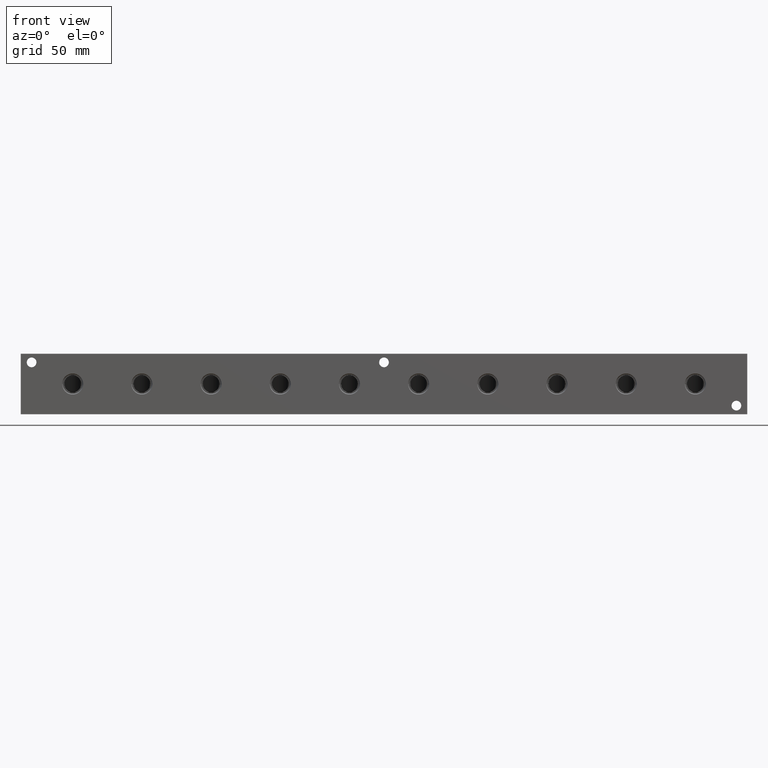
[diagram: clean part render]
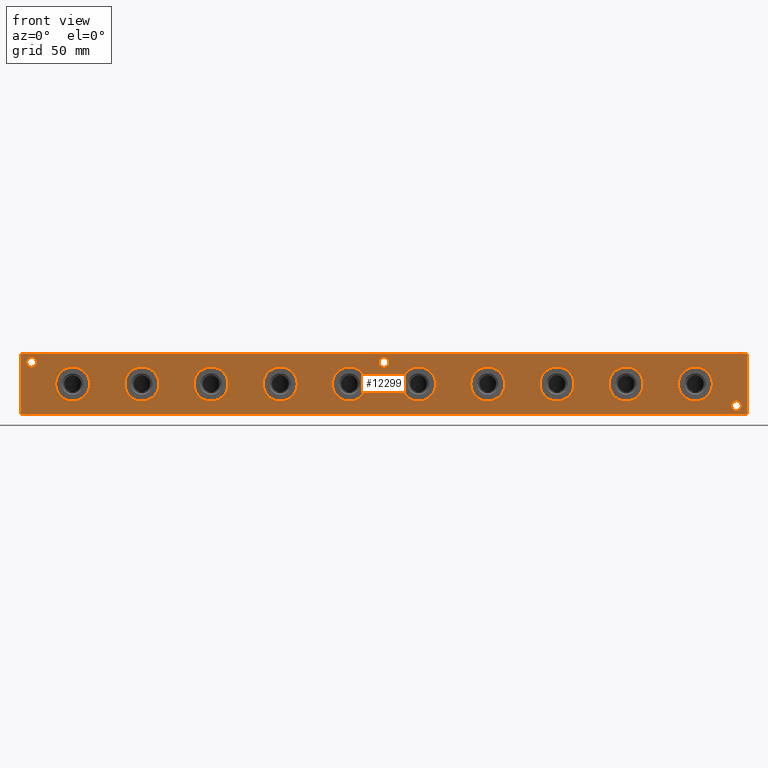
[diagram: same view with one face highlighted and labeled with its STEP entity id]
A machine part, front view. The second image highlights one B-rep face of the part: STEP entity #12299.
In plain terms, the highlighted planar face has unit normal (0, -1, 0).
Its self-contained STEP definition (entity closure, byte-faithful):
#453=CIRCLE('',#12546,12.5095);
#454=CIRCLE('',#12547,12.5095);
#464=CIRCLE('',#12562,12.5095);
#465=CIRCLE('',#12563,12.5095);
#475=CIRCLE('',#12578,12.5095);
#476=CIRCLE('',#12579,12.5095);
#486=CIRCLE('',#12594,12.5095);
#487=CIRCLE('',#12595,12.5095);
#497=CIRCLE('',#12610,12.5095);
#498=CIRCLE('',#12611,12.5095);
#508=CIRCLE('',#12626,12.5095);
#509=CIRCLE('',#12627,12.5095);
#519=CIRCLE('',#12642,12.5095);
#520=CIRCLE('',#12643,12.5095);
#530=CIRCLE('',#12658,12.5095);
#531=CIRCLE('',#12659,12.5095);
#541=CIRCLE('',#12674,12.5095);
#542=CIRCLE('',#12675,12.5095);
#723=CIRCLE('',#13110,12.5095);
#724=CIRCLE('',#13111,12.5095);
#971=CIRCLE('',#13505,3.5687);
#972=CIRCLE('',#13506,3.5687);
#974=CIRCLE('',#13514,3.5687);
#975=CIRCLE('',#13515,3.5687);
#977=CIRCLE('',#13523,3.5687);
#978=CIRCLE('',#13524,3.5687);
#1097=FACE_BOUND('',#2910,.T.);
#1098=FACE_BOUND('',#2911,.T.);
#1099=FACE_BOUND('',#2912,.T.);
#1100=FACE_BOUND('',#2913,.T.);
#1101=FACE_BOUND('',#2914,.T.);
#1102=FACE_BOUND('',#2915,.T.);
#1103=FACE_BOUND('',#2916,.T.);
#1104=FACE_BOUND('',#2917,.T.);
#1105=FACE_BOUND('',#2918,.T.);
#1106=FACE_BOUND('',#2919,.T.);
#1107=FACE_BOUND('',#2920,.T.);
#1108=FACE_BOUND('',#2921,.T.);
#1109=FACE_BOUND('',#2922,.T.);
#2140=FACE_OUTER_BOUND('',#2909,.T.);
#2909=EDGE_LOOP('',(#11013,#11014,#11015,#11016));
#2910=EDGE_LOOP('',(#11017,#11018));
#2911=EDGE_LOOP('',(#11019,#11020));
#2912=EDGE_LOOP('',(#11021,#11022));
#2913=EDGE_LOOP('',(#11023,#11024));
#2914=EDGE_LOOP('',(#11025,#11026));
#2915=EDGE_LOOP('',(#11027,#11028));
#2916=EDGE_LOOP('',(#11029,#11030));
#2917=EDGE_LOOP('',(#11031,#11032));
#2918=EDGE_LOOP('',(#11033,#11034));
#2919=EDGE_LOOP('',(#11035,#11036));
#2920=EDGE_LOOP('',(#11037,#11038));
#2921=EDGE_LOOP('',(#11039,#11040));
#2922=EDGE_LOOP('',(#11041,#11042));
#3188=LINE('',#18909,#4019);
#3762=LINE('',#22071,#4593);
#3767=LINE('',#22080,#4598);
#3768=LINE('',#22082,#4599);
#4019=VECTOR('',#13948,10.);
#4593=VECTOR('',#16882,10.);
#4598=VECTOR('',#16891,10.);
#4599=VECTOR('',#16894,10.);
#4884=VERTEX_POINT('',#18907);
#4885=VERTEX_POINT('',#18908);
#5176=VERTEX_POINT('',#19873);
#5177=VERTEX_POINT('',#19874);
#5187=VERTEX_POINT('',#19904);
#5188=VERTEX_POINT('',#19905);
#5198=VERTEX_POINT('',#19935);
#5199=VERTEX_POINT('',#19936);
#5209=VERTEX_POINT('',#19966);
#5210=VERTEX_POINT('',#19967);
#5220=VERTEX_POINT('',#19997);
#5221=VERTEX_POINT('',#19998);
#5231=VERTEX_POINT('',#20028);
#5232=VERTEX_POINT('',#20029);
#5242=VERTEX_POINT('',#20059);
#5243=VERTEX_POINT('',#20060);
#5253=VERTEX_POINT('',#20090);
#5254=VERTEX_POINT('',#20091);
#5264=VERTEX_POINT('',#20121);
#5265=VERTEX_POINT('',#20122);
#5490=VERTEX_POINT('',#21213);
#5491=VERTEX_POINT('',#21214);
#5738=VERTEX_POINT('',#21964);
#5739=VERTEX_POINT('',#21965);
#5743=VERTEX_POINT('',#21980);
#5744=VERTEX_POINT('',#21981);
#5748=VERTEX_POINT('',#21996);
#5749=VERTEX_POINT('',#21997);
#5769=VERTEX_POINT('',#22069);
#5771=VERTEX_POINT('',#22078);
#6198=EDGE_CURVE('',#4884,#4885,#3188,.T.);
#6621=EDGE_CURVE('',#5176,#5177,#453,.T.);
#6622=EDGE_CURVE('',#5177,#5176,#454,.T.);
#6636=EDGE_CURVE('',#5187,#5188,#464,.T.);
#6637=EDGE_CURVE('',#5188,#5187,#465,.T.);
#6651=EDGE_CURVE('',#5198,#5199,#475,.T.);
#6652=EDGE_CURVE('',#5199,#5198,#476,.T.);
#6666=EDGE_CURVE('',#5209,#5210,#486,.T.);
#6667=EDGE_CURVE('',#5210,#5209,#487,.T.);
#6681=EDGE_CURVE('',#5220,#5221,#497,.T.);
#6682=EDGE_CURVE('',#5221,#5220,#498,.T.);
#6696=EDGE_CURVE('',#5231,#5232,#508,.T.);
#6697=EDGE_CURVE('',#5232,#5231,#509,.T.);
#6711=EDGE_CURVE('',#5242,#5243,#519,.T.);
#6712=EDGE_CURVE('',#5243,#5242,#520,.T.);
#6726=EDGE_CURVE('',#5253,#5254,#530,.T.);
#6727=EDGE_CURVE('',#5254,#5253,#531,.T.);
#6741=EDGE_CURVE('',#5264,#5265,#541,.T.);
#6742=EDGE_CURVE('',#5265,#5264,#542,.T.);
#7121=EDGE_CURVE('',#5490,#5491,#723,.T.);
#7122=EDGE_CURVE('',#5491,#5490,#724,.T.);
#7477=EDGE_CURVE('',#5738,#5739,#971,.T.);
#7478=EDGE_CURVE('',#5739,#5738,#972,.T.);
#7486=EDGE_CURVE('',#5743,#5744,#974,.T.);
#7487=EDGE_CURVE('',#5744,#5743,#975,.T.);
#7495=EDGE_CURVE('',#5748,#5749,#977,.T.);
#7496=EDGE_CURVE('',#5749,#5748,#978,.T.);
#7532=EDGE_CURVE('',#5769,#4884,#3762,.T.);
#7537=EDGE_CURVE('',#5771,#4885,#3767,.T.);
#7538=EDGE_CURVE('',#5769,#5771,#3768,.T.);
#11013=ORIENTED_EDGE('',*,*,#7538,.T.);
#11014=ORIENTED_EDGE('',*,*,#7537,.T.);
#11015=ORIENTED_EDGE('',*,*,#6198,.F.);
#11016=ORIENTED_EDGE('',*,*,#7532,.F.);
#11017=ORIENTED_EDGE('',*,*,#6621,.T.);
#11018=ORIENTED_EDGE('',*,*,#6622,.T.);
#11019=ORIENTED_EDGE('',*,*,#6636,.T.);
#11020=ORIENTED_EDGE('',*,*,#6637,.T.);
#11021=ORIENTED_EDGE('',*,*,#6651,.T.);
#11022=ORIENTED_EDGE('',*,*,#6652,.T.);
#11023=ORIENTED_EDGE('',*,*,#6666,.T.);
#11024=ORIENTED_EDGE('',*,*,#6667,.T.);
#11025=ORIENTED_EDGE('',*,*,#6681,.T.);
#11026=ORIENTED_EDGE('',*,*,#6682,.T.);
#11027=ORIENTED_EDGE('',*,*,#6696,.T.);
#11028=ORIENTED_EDGE('',*,*,#6697,.T.);
#11029=ORIENTED_EDGE('',*,*,#6711,.T.);
#11030=ORIENTED_EDGE('',*,*,#6712,.T.);
#11031=ORIENTED_EDGE('',*,*,#6726,.T.);
#11032=ORIENTED_EDGE('',*,*,#6727,.T.);
#11033=ORIENTED_EDGE('',*,*,#6741,.T.);
#11034=ORIENTED_EDGE('',*,*,#6742,.T.);
#11035=ORIENTED_EDGE('',*,*,#7121,.T.);
#11036=ORIENTED_EDGE('',*,*,#7122,.T.);
#11037=ORIENTED_EDGE('',*,*,#7477,.T.);
#11038=ORIENTED_EDGE('',*,*,#7478,.T.);
#11039=ORIENTED_EDGE('',*,*,#7486,.T.);
#11040=ORIENTED_EDGE('',*,*,#7487,.T.);
#11041=ORIENTED_EDGE('',*,*,#7495,.T.);
#11042=ORIENTED_EDGE('',*,*,#7496,.T.);
#11339=PLANE('',#13563);
#12299=ADVANCED_FACE('',(#2140,#1097,#1098,#1099,#1100,#1101,#1102,#1103,
#1104,#1105,#1106,#1107,#1108,#1109),#11339,.T.);
#12546=AXIS2_PLACEMENT_3D('',#19875,#14659,#14660);
#12547=AXIS2_PLACEMENT_3D('',#19876,#14661,#14662);
#12562=AXIS2_PLACEMENT_3D('',#19906,#14695,#14696);
#12563=AXIS2_PLACEMENT_3D('',#19907,#14697,#14698);
#12578=AXIS2_PLACEMENT_3D('',#19937,#14731,#14732);
#12579=AXIS2_PLACEMENT_3D('',#19938,#14733,#14734);
#12594=AXIS2_PLACEMENT_3D('',#19968,#14767,#14768);
#12595=AXIS2_PLACEMENT_3D('',#19969,#14769,#14770);
#12610=AXIS2_PLACEMENT_3D('',#19999,#14803,#14804);
#12611=AXIS2_PLACEMENT_3D('',#20000,#14805,#14806);
#12626=AXIS2_PLACEMENT_3D('',#20030,#14839,#14840);
#12627=AXIS2_PLACEMENT_3D('',#20031,#14841,#14842);
#12642=AXIS2_PLACEMENT_3D('',#20061,#14875,#14876);
#12643=AXIS2_PLACEMENT_3D('',#20062,#14877,#14878);
#12658=AXIS2_PLACEMENT_3D('',#20092,#14911,#14912);
#12659=AXIS2_PLACEMENT_3D('',#20093,#14913,#14914);
#12674=AXIS2_PLACEMENT_3D('',#20123,#14947,#14948);
#12675=AXIS2_PLACEMENT_3D('',#20124,#14949,#14950);
#13110=AXIS2_PLACEMENT_3D('',#21215,#15853,#15854);
#13111=AXIS2_PLACEMENT_3D('',#21216,#15855,#15856);
#13505=AXIS2_PLACEMENT_3D('',#21966,#16751,#16752);
#13506=AXIS2_PLACEMENT_3D('',#21967,#16753,#16754);
#13514=AXIS2_PLACEMENT_3D('',#21982,#16771,#16772);
#13515=AXIS2_PLACEMENT_3D('',#21983,#16773,#16774);
#13523=AXIS2_PLACEMENT_3D('',#21998,#16791,#16792);
#13524=AXIS2_PLACEMENT_3D('',#21999,#16793,#16794);
#13563=AXIS2_PLACEMENT_3D('',#22081,#16892,#16893);
#13948=DIRECTION('',(1.,0.,0.));
#14659=DIRECTION('center_axis',(0.,1.,0.));
#14660=DIRECTION('ref_axis',(1.,0.,0.));
#14661=DIRECTION('center_axis',(0.,1.,0.));
#14662=DIRECTION('ref_axis',(1.,0.,0.));
#14695=DIRECTION('center_axis',(0.,1.,0.));
#14696=DIRECTION('ref_axis',(1.,0.,0.));
#14697=DIRECTION('center_axis',(0.,1.,0.));
#14698=DIRECTION('ref_axis',(1.,0.,0.));
#14731=DIRECTION('center_axis',(0.,1.,0.));
#14732=DIRECTION('ref_axis',(1.,0.,0.));
#14733=DIRECTION('center_axis',(0.,1.,0.));
#14734=DIRECTION('ref_axis',(1.,0.,0.));
#14767=DIRECTION('center_axis',(0.,1.,0.));
#14768=DIRECTION('ref_axis',(1.,0.,0.));
#14769=DIRECTION('center_axis',(0.,1.,0.));
#14770=DIRECTION('ref_axis',(1.,0.,0.));
#14803=DIRECTION('center_axis',(0.,1.,0.));
#14804=DIRECTION('ref_axis',(1.,0.,0.));
#14805=DIRECTION('center_axis',(0.,1.,0.));
#14806=DIRECTION('ref_axis',(1.,0.,0.));
#14839=DIRECTION('center_axis',(0.,1.,0.));
#14840=DIRECTION('ref_axis',(1.,0.,0.));
#14841=DIRECTION('center_axis',(0.,1.,0.));
#14842=DIRECTION('ref_axis',(1.,0.,0.));
#14875=DIRECTION('center_axis',(0.,1.,0.));
#14876=DIRECTION('ref_axis',(1.,0.,0.));
#14877=DIRECTION('center_axis',(0.,1.,0.));
#14878=DIRECTION('ref_axis',(1.,0.,0.));
#14911=DIRECTION('center_axis',(0.,1.,0.));
#14912=DIRECTION('ref_axis',(1.,0.,0.));
#14913=DIRECTION('center_axis',(0.,1.,0.));
#14914=DIRECTION('ref_axis',(1.,0.,0.));
#14947=DIRECTION('center_axis',(0.,1.,0.));
#14948=DIRECTION('ref_axis',(1.,0.,0.));
#14949=DIRECTION('center_axis',(0.,1.,0.));
#14950=DIRECTION('ref_axis',(1.,0.,0.));
#15853=DIRECTION('center_axis',(0.,1.,0.));
#15854=DIRECTION('ref_axis',(1.,0.,0.));
#15855=DIRECTION('center_axis',(0.,1.,0.));
#15856=DIRECTION('ref_axis',(1.,0.,0.));
#16751=DIRECTION('center_axis',(0.,1.,0.));
#16752=DIRECTION('ref_axis',(1.,0.,0.));
#16753=DIRECTION('center_axis',(0.,1.,0.));
#16754=DIRECTION('ref_axis',(1.,0.,0.));
#16771=DIRECTION('center_axis',(0.,1.,0.));
#16772=DIRECTION('ref_axis',(1.,0.,0.));
#16773=DIRECTION('center_axis',(0.,1.,0.));
#16774=DIRECTION('ref_axis',(1.,0.,0.));
#16791=DIRECTION('center_axis',(0.,1.,0.));
#16792=DIRECTION('ref_axis',(1.,0.,0.));
#16793=DIRECTION('center_axis',(0.,1.,0.));
#16794=DIRECTION('ref_axis',(1.,0.,0.));
#16882=DIRECTION('',(0.,0.,1.));
#16891=DIRECTION('',(0.,0.,1.));
#16892=DIRECTION('center_axis',(0.,-1.,0.));
#16893=DIRECTION('ref_axis',(1.,0.,0.));
#16894=DIRECTION('',(1.,0.,0.));
#18907=CARTESIAN_POINT('',(0.,0.,44.45));
#18908=CARTESIAN_POINT('',(533.4,0.,44.45));
#18909=CARTESIAN_POINT('',(0.,0.,44.45));
#19873=CARTESIAN_POINT('',(355.4095,0.,22.225));
#19874=CARTESIAN_POINT('',(330.3905,0.,22.225));
#19875=CARTESIAN_POINT('Origin',(342.9,0.,22.225));
#19876=CARTESIAN_POINT('Origin',(342.9,0.,22.225));
#19904=CARTESIAN_POINT('',(203.0095,0.,22.225));
#19905=CARTESIAN_POINT('',(177.9905,0.,22.225));
#19906=CARTESIAN_POINT('Origin',(190.5,0.,22.225));
#19907=CARTESIAN_POINT('Origin',(190.5,0.,22.225));
#19935=CARTESIAN_POINT('',(406.2095,0.,22.225));
#19936=CARTESIAN_POINT('',(381.1905,0.,22.225));
#19937=CARTESIAN_POINT('Origin',(393.7,0.,22.225));
#19938=CARTESIAN_POINT('Origin',(393.7,0.,22.225));
#19966=CARTESIAN_POINT('',(152.2095,0.,22.225));
#19967=CARTESIAN_POINT('',(127.1905,0.,22.225));
#19968=CARTESIAN_POINT('Origin',(139.7,0.,22.225));
#19969=CARTESIAN_POINT('Origin',(139.7,0.,22.225));
#19997=CARTESIAN_POINT('',(457.0095,0.,22.225));
#19998=CARTESIAN_POINT('',(431.9905,0.,22.225));
#19999=CARTESIAN_POINT('Origin',(444.5,0.,22.225));
#20000=CARTESIAN_POINT('Origin',(444.5,0.,22.225));
#20028=CARTESIAN_POINT('',(304.6095,0.,22.225));
#20029=CARTESIAN_POINT('',(279.5905,0.,22.225));
#20030=CARTESIAN_POINT('Origin',(292.1,0.,22.225));
#20031=CARTESIAN_POINT('Origin',(292.1,0.,22.225));
#20059=CARTESIAN_POINT('',(253.8095,0.,22.225));
#20060=CARTESIAN_POINT('',(228.7905,0.,22.225));
#20061=CARTESIAN_POINT('Origin',(241.3,0.,22.225));
#20062=CARTESIAN_POINT('Origin',(241.3,0.,22.225));
#20090=CARTESIAN_POINT('',(507.8095,0.,22.225));
#20091=CARTESIAN_POINT('',(482.7905,0.,22.225));
#20092=CARTESIAN_POINT('Origin',(495.3,0.,22.225));
#20093=CARTESIAN_POINT('Origin',(495.3,0.,22.225));
#20121=CARTESIAN_POINT('',(101.4095,0.,22.225));
#20122=CARTESIAN_POINT('',(76.3905,0.,22.225));
#20123=CARTESIAN_POINT('Origin',(88.9,0.,22.225));
#20124=CARTESIAN_POINT('Origin',(88.9,0.,22.225));
#21213=CARTESIAN_POINT('',(50.6095,0.,22.225));
#21214=CARTESIAN_POINT('',(25.5905,0.,22.225));
#21215=CARTESIAN_POINT('Origin',(38.1,0.,22.225));
#21216=CARTESIAN_POINT('Origin',(38.1,0.,22.225));
#21964=CARTESIAN_POINT('',(529.0439,0.,6.35));
#21965=CARTESIAN_POINT('',(521.9065,0.,6.35));
#21966=CARTESIAN_POINT('Origin',(525.4752,0.,6.35));
#21967=CARTESIAN_POINT('Origin',(525.4752,0.,6.35));
#21980=CARTESIAN_POINT('',(11.4935,0.,38.1));
#21981=CARTESIAN_POINT('',(4.3561,0.,38.1));
#21982=CARTESIAN_POINT('Origin',(7.9248,0.,38.1));
#21983=CARTESIAN_POINT('Origin',(7.9248,0.,38.1));
#21996=CARTESIAN_POINT('',(270.2687,0.,38.1));
#21997=CARTESIAN_POINT('',(263.1313,0.,38.1));
#21998=CARTESIAN_POINT('Origin',(266.7,0.,38.1));
#21999=CARTESIAN_POINT('Origin',(266.7,0.,38.1));
#22069=CARTESIAN_POINT('',(0.,0.,0.));
#22071=CARTESIAN_POINT('',(0.,0.,0.));
#22078=CARTESIAN_POINT('',(533.4,0.,0.));
#22080=CARTESIAN_POINT('',(533.4,0.,0.));
#22081=CARTESIAN_POINT('Origin',(0.,0.,0.));
#22082=CARTESIAN_POINT('',(0.,0.,0.));